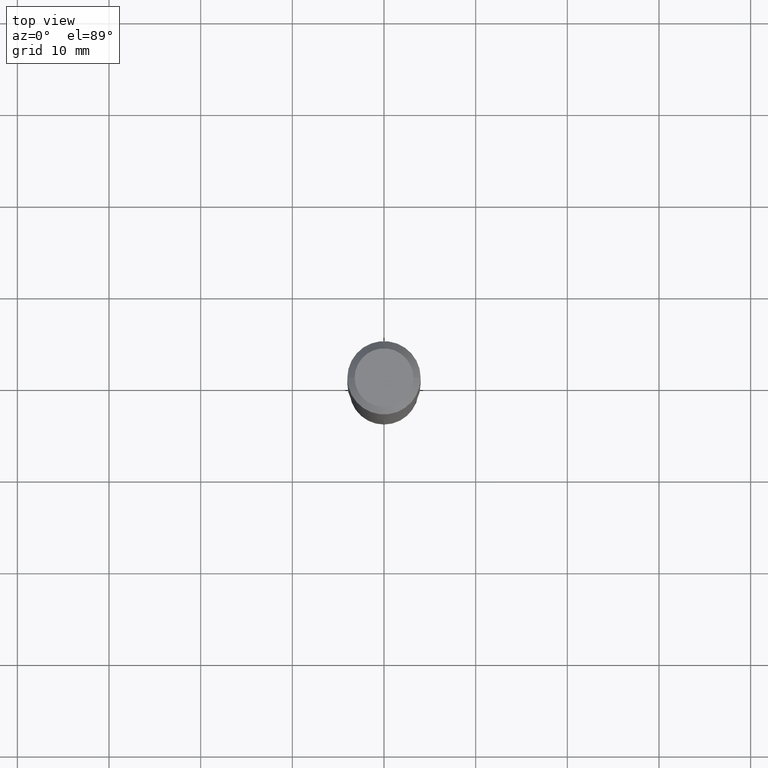
[diagram: clean part render]
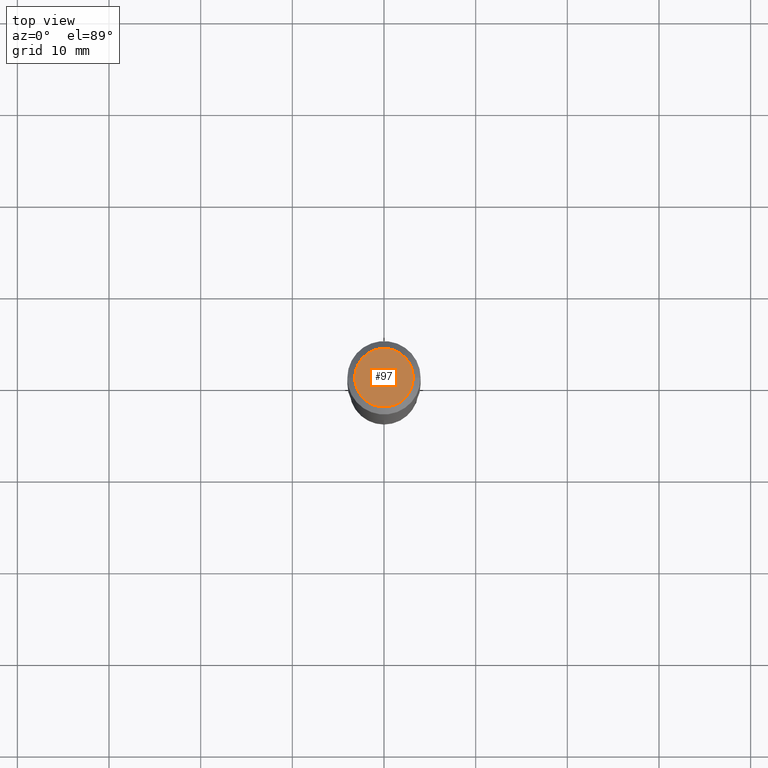
[diagram: same view with one face highlighted and labeled with its STEP entity id]
A machine part, top view. The second image highlights one B-rep face of the part: STEP entity #97.
In plain terms, the highlighted planar face has unit normal (0, -0, -1).
Its self-contained STEP definition (entity closure, byte-faithful):
#5 = CARTESIAN_POINT ( 'NONE',  ( -0.1260000000000000009, 9.348441284752484904E-16, 3.860086710906114178E-18 ) ) ;
#18 = DIRECTION ( 'NONE',  ( -2.445468806185136597E-29, 3.491481338843145583E-15, 1.000000000000000000 ) ) ;
#97 = ADVANCED_FACE ( 'NONE', ( #193 ), #104, .F. ) ;
#103 = DIRECTION ( 'NONE',  ( -2.445468806185136597E-29, 3.491481338843145583E-15, 1.000000000000000000 ) ) ;
#104 = PLANE ( 'NONE',  #252 ) ;
#144 = ORIENTED_EDGE ( 'NONE', *, *, #258, .T. ) ;
#150 = ORIENTED_EDGE ( 'NONE', *, *, #490, .T. ) ;
#157 = DIRECTION ( 'NONE',  ( 1.000000000000000000, -6.982962677686265922E-15, 4.876281427513067258E-29 ) ) ;
#160 = DIRECTION ( 'NONE',  ( -1.000000000000000000, 6.982962677686265922E-15, -4.876176775795935793E-29 ) ) ;
#171 = CARTESIAN_POINT ( 'NONE',  ( 0.1260000000000000009, -1.027466422270894443E-15, 3.860086710919128072E-18 ) ) ;
#193 = FACE_OUTER_BOUND ( 'NONE', #412, .T. ) ;
#204 = AXIS2_PLACEMENT_3D ( 'NONE', #352, #18, #157 ) ;
#238 = AXIS2_PLACEMENT_3D ( 'NONE', #280, #103, #243 ) ;
#243 = DIRECTION ( 'NONE',  ( 1.000000000000000000, -6.982962677686265922E-15, 4.876281427513067258E-29 ) ) ;
#245 = CIRCLE ( 'NONE', #204, 0.1260000000000000009 ) ;
#247 = DIRECTION ( 'NONE',  ( 2.438088387897960049E-29, -3.491481338843145188E-15, -1.000000000000000000 ) ) ;
#252 = AXIS2_PLACEMENT_3D ( 'NONE', #356, #247, #160 ) ;
#258 = EDGE_CURVE ( 'NONE', #345, #462, #464, .T. ) ;
#280 = CARTESIAN_POINT ( 'NONE',  ( -9.439721640706201686E-47, 1.347742071746726764E-32, 3.860086710912459732E-18 ) ) ;
#345 = VERTEX_POINT ( 'NONE', #5 ) ;
#352 = CARTESIAN_POINT ( 'NONE',  ( -9.439721640706201686E-47, 1.347742071746726764E-32, 3.860086710912459732E-18 ) ) ;
#356 = CARTESIAN_POINT ( 'NONE',  ( -4.719860820353100843E-47, 6.738710358733633822E-33, 1.930043355456229866E-18 ) ) ;
#412 = EDGE_LOOP ( 'NONE', ( #144, #150 ) ) ;
#462 = VERTEX_POINT ( 'NONE', #171 ) ;
#464 = CIRCLE ( 'NONE', #238, 0.1260000000000000009 ) ;
#490 = EDGE_CURVE ( 'NONE', #462, #345, #245, .T. ) ;